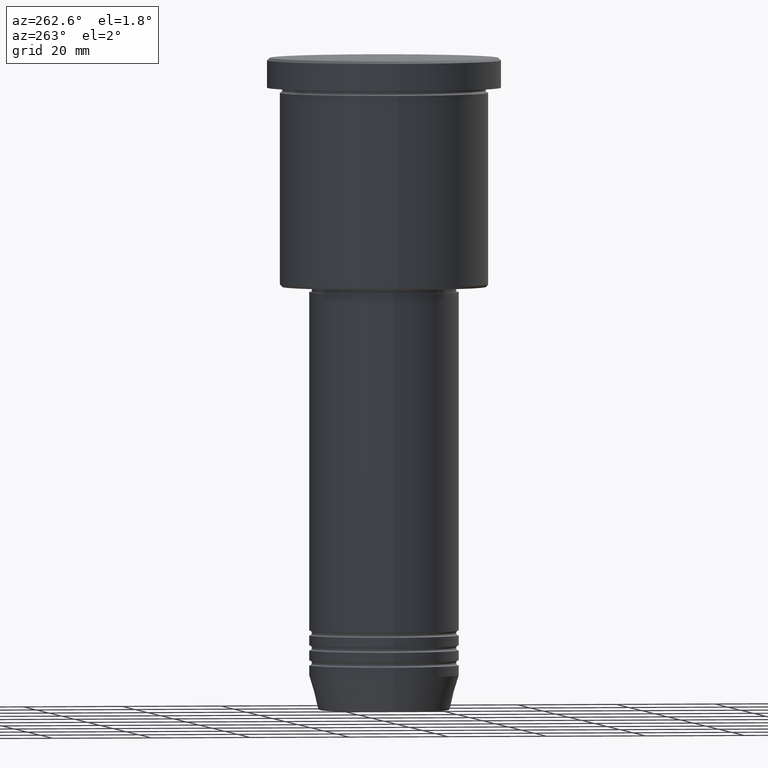
[diagram: clean part render]
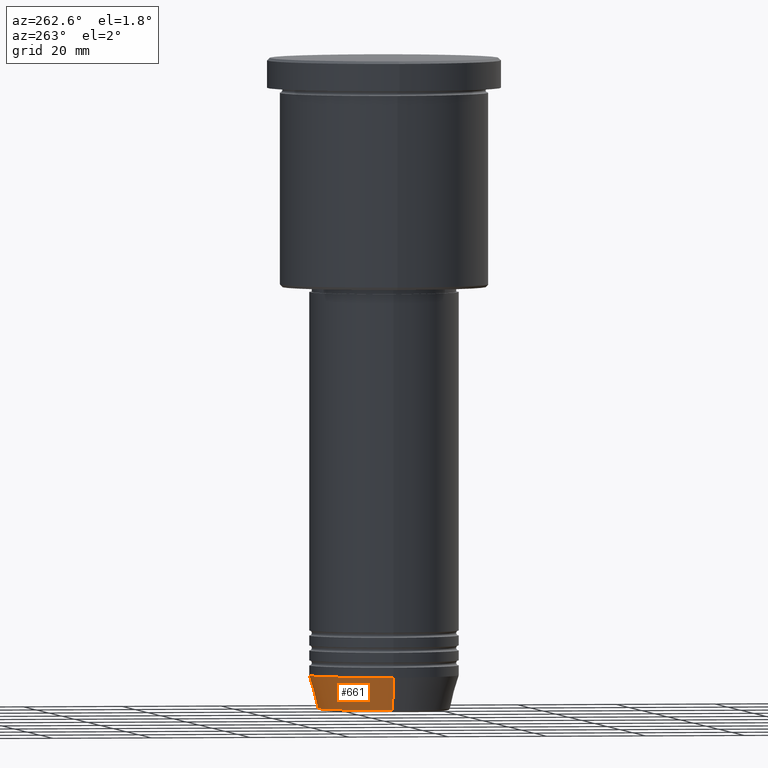
[diagram: same view with one face highlighted and labeled with its STEP entity id]
A machine part, auxiliary view. The second image highlights one B-rep face of the part: STEP entity #661.
In plain terms, the highlighted conical surface has half-angle 15 deg.
Its self-contained STEP definition (entity closure, byte-faithful):
#21 = VECTOR ( 'NONE', #989, 1000.000000000000000 ) ;
#63 = CARTESIAN_POINT ( 'NONE',  ( 0.000000000000000000, 0.000000000000000000, -124.0000000000000000 ) ) ;
#117 = EDGE_CURVE ( 'NONE', #461, #815, #1161, .T. ) ;
#132 = ORIENTED_EDGE ( 'NONE', *, *, #169, .T. ) ;
#146 = DIRECTION ( 'NONE',  ( -0.000000000000000000, -0.000000000000000000, 1.000000000000000000 ) ) ;
#169 = EDGE_CURVE ( 'NONE', #753, #461, #390, .T. ) ;
#229 = CARTESIAN_POINT ( 'NONE',  ( 0.000000000000000000, 0.000000000000000000, -130.6294095225512422 ) ) ;
#276 = CIRCLE ( 'NONE', #426, 15.00000000000000000 ) ;
#298 = EDGE_CURVE ( 'NONE', #753, #450, #1099, .T. ) ;
#390 = CIRCLE ( 'NONE', #662, 13.22365507213719305 ) ;
#422 = DIRECTION ( 'NONE',  ( 1.000000000000000000, 0.000000000000000000, 0.000000000000000000 ) ) ;
#426 = AXIS2_PLACEMENT_3D ( 'NONE', #63, #431, #987 ) ;
#431 = DIRECTION ( 'NONE',  ( -0.000000000000000000, -0.000000000000000000, 1.000000000000000000 ) ) ;
#450 = VERTEX_POINT ( 'NONE', #674 ) ;
#461 = VERTEX_POINT ( 'NONE', #1108 ) ;
#472 = CARTESIAN_POINT ( 'NONE',  ( 15.00000000000000000, 0.000000000000000000, -124.0000000000000000 ) ) ;
#496 = EDGE_LOOP ( 'NONE', ( #132, #970, #1153, #923 ) ) ;
#514 = DIRECTION ( 'NONE',  ( -0.000000000000000000, -0.000000000000000000, 1.000000000000000000 ) ) ;
#564 = CONICAL_SURFACE ( 'NONE', #841, 15.00000000000000000, 0.2617993877991500740 ) ;
#658 = DIRECTION ( 'NONE',  ( 0.2588190451025213501, 0.000000000000000000, 0.9659258262890680902 ) ) ;
#661 = ADVANCED_FACE ( 'NONE', ( #893 ), #564, .T. ) ;
#662 = AXIS2_PLACEMENT_3D ( 'NONE', #229, #514, #1076 ) ;
#674 = CARTESIAN_POINT ( 'NONE',  ( 15.00000000000000000, 0.000000000000000000, -124.0000000000000000 ) ) ;
#714 = EDGE_CURVE ( 'NONE', #450, #815, #276, .T. ) ;
#720 = CARTESIAN_POINT ( 'NONE',  ( 0.000000000000000000, 0.000000000000000000, -124.0000000000000000 ) ) ;
#753 = VERTEX_POINT ( 'NONE', #1029 ) ;
#815 = VERTEX_POINT ( 'NONE', #1127 ) ;
#841 = AXIS2_PLACEMENT_3D ( 'NONE', #720, #146, #422 ) ;
#893 = FACE_OUTER_BOUND ( 'NONE', #496, .T. ) ;
#923 = ORIENTED_EDGE ( 'NONE', *, *, #298, .F. ) ;
#970 = ORIENTED_EDGE ( 'NONE', *, *, #117, .T. ) ;
#987 = DIRECTION ( 'NONE',  ( 1.000000000000000000, 0.000000000000000000, 0.000000000000000000 ) ) ;
#989 = DIRECTION ( 'NONE',  ( -0.2588190451025213501, 3.169619151431772337E-17, 0.9659258262890680902 ) ) ;
#1029 = CARTESIAN_POINT ( 'NONE',  ( 13.22365507213719305, 0.000000000000000000, -130.6294095225512422 ) ) ;
#1076 = DIRECTION ( 'NONE',  ( 1.000000000000000000, 0.000000000000000000, 0.000000000000000000 ) ) ;
#1099 = LINE ( 'NONE', #472, #1124 ) ;
#1108 = CARTESIAN_POINT ( 'NONE',  ( -13.22365507213719305, 1.728200442216588386E-15, -130.6294095225512422 ) ) ;
#1124 = VECTOR ( 'NONE', #658, 1000.000000000000000 ) ;
#1127 = CARTESIAN_POINT ( 'NONE',  ( -15.00000000000000000, 1.836970198721029589E-15, -124.0000000000000000 ) ) ;
#1140 = CARTESIAN_POINT ( 'NONE',  ( -15.00000000000000000, 1.836970198721029589E-15, -124.0000000000000000 ) ) ;
#1153 = ORIENTED_EDGE ( 'NONE', *, *, #714, .F. ) ;
#1161 = LINE ( 'NONE', #1140, #21 ) ;